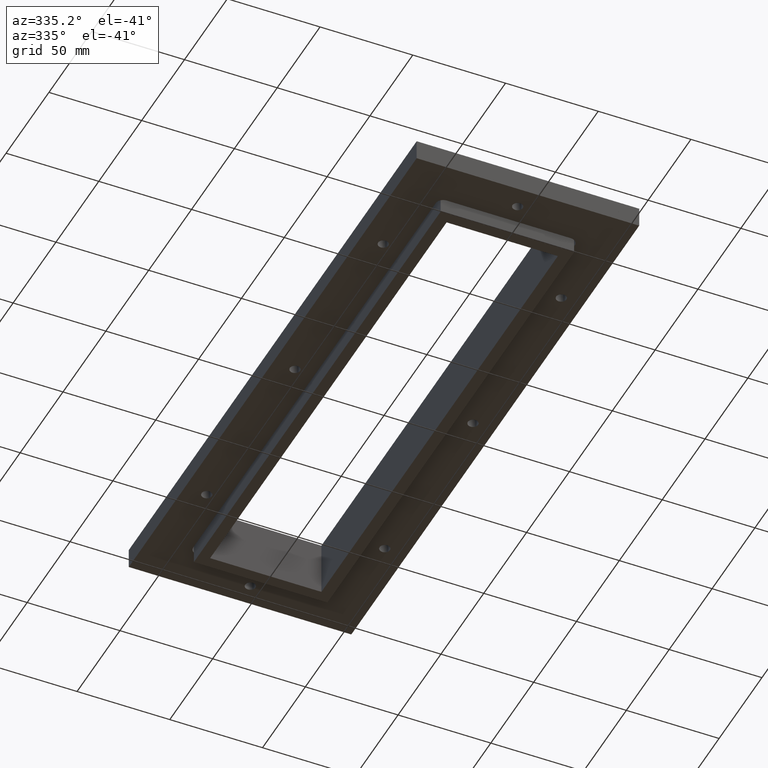
[diagram: clean part render]
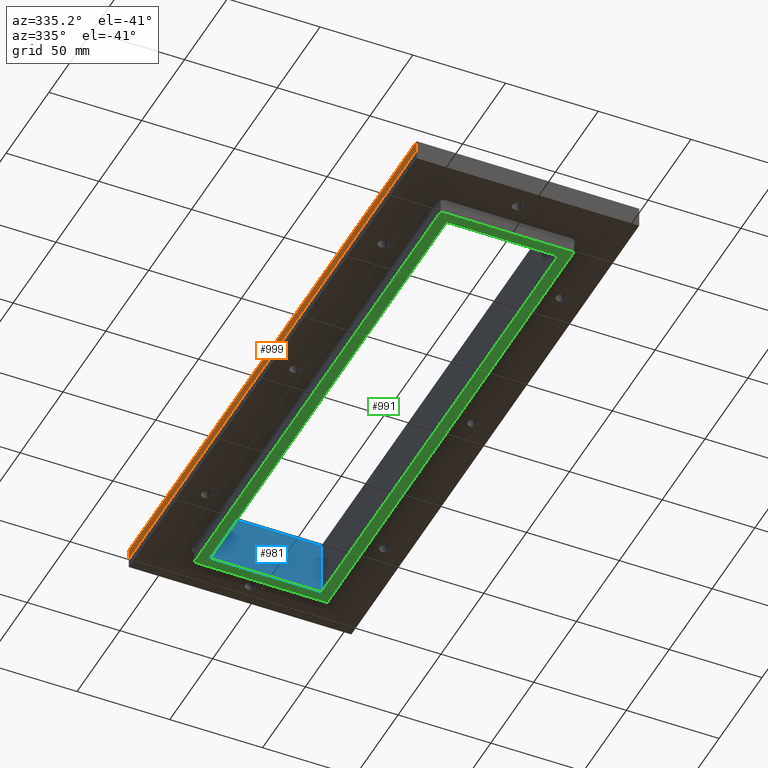
[diagram: same view with three faces highlighted in distinct colors, each labeled with its STEP entity id]
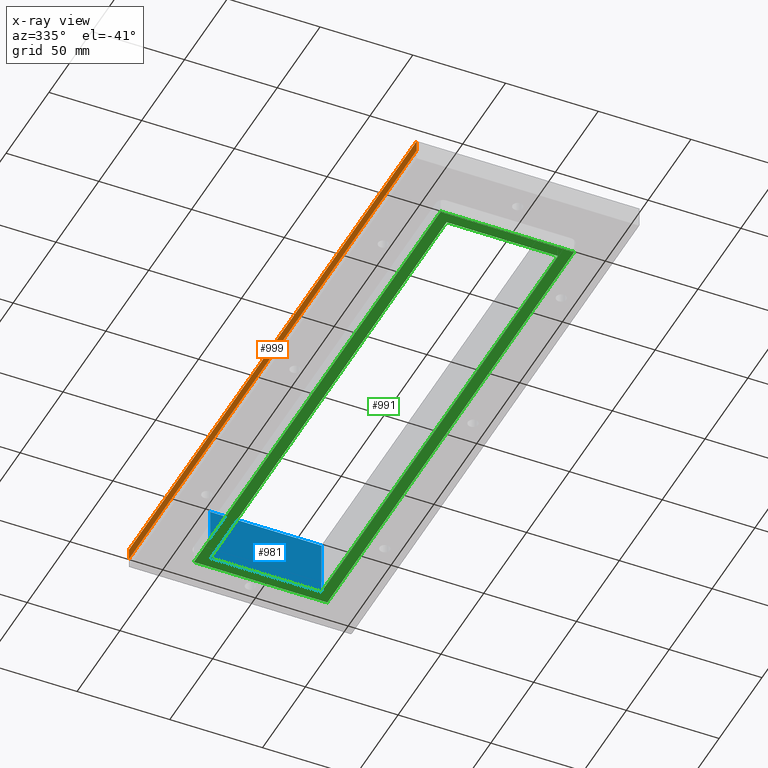
[diagram: x-ray of the same camera — body ghosted, the three highlighted faces saturated]
A machine part, auxiliary view with three faces highlighted in distinct colors.
The next image is the same camera in x-ray (body ghosted, the three faces saturated) — at least one of them is partly hidden behind the body in this view.
Their STEP definitions:

[orange] entity #999 — the highlighted planar face has unit normal (-1, 0, -0).
#95=PLANE('',#1086);
#133=FACE_OUTER_BOUND('',#203,.T.);
#203=EDGE_LOOP('',(#825,#826,#827,#828));
#263=LINE('',#1482,#355);
#292=LINE('',#1539,#384);
#295=LINE('',#1544,#387);
#297=LINE('',#1547,#389);
#355=VECTOR('',#1208,10.);
#384=VECTOR('',#1257,10.);
#387=VECTOR('',#1262,10.);
#389=VECTOR('',#1266,10.);
#495=VERTEX_POINT('',#1479);
#496=VERTEX_POINT('',#1481);
#514=VERTEX_POINT('',#1538);
#515=VERTEX_POINT('',#1543);
#591=EDGE_CURVE('',#496,#495,#263,.T.);
#620=EDGE_CURVE('',#514,#495,#292,.T.);
#623=EDGE_CURVE('',#515,#514,#295,.T.);
#625=EDGE_CURVE('',#515,#496,#297,.T.);
#825=ORIENTED_EDGE('',*,*,#591,.T.);
#826=ORIENTED_EDGE('',*,*,#620,.F.);
#827=ORIENTED_EDGE('',*,*,#623,.F.);
#828=ORIENTED_EDGE('',*,*,#625,.T.);
#999=ADVANCED_FACE('',(#133),#95,.T.);
#1086=AXIS2_PLACEMENT_3D('',#1555,#1276,#1277);
#1208=DIRECTION('',(2.96059473233375E-15,-2.96059473233375E-15,-1.));
#1257=DIRECTION('',(2.25262642677568E-16,1.,0.));
#1262=DIRECTION('',(2.96059473233375E-15,2.96059473233375E-15,-1.));
#1266=DIRECTION('',(2.25262642677568E-16,1.,0.));
#1276=DIRECTION('center_axis',(-1.,2.25262642677568E-16,-2.96059473233375E-15));
#1277=DIRECTION('ref_axis',(2.96059473233375E-15,0.,-1.));
#1479=CARTESIAN_POINT('',(-59.9999999999999,168.,-3.));
#1481=CARTESIAN_POINT('',(-60.,168.,3.));
#1482=CARTESIAN_POINT('',(-60.,168.,1.49999999999987));
#1538=CARTESIAN_POINT('',(-60.,-168.,-3.));
#1539=CARTESIAN_POINT('',(-59.9999999999999,138.,-3.));
#1543=CARTESIAN_POINT('',(-60.,-168.,3.));
#1544=CARTESIAN_POINT('',(-60.,-168.,1.49999999999946));
#1547=CARTESIAN_POINT('',(-60.,138.,3.));
#1555=CARTESIAN_POINT('Origin',(-60.,138.,3.));

[blue] entity #981 — the highlighted planar face has unit normal (-0, -1, -0).
#77=PLANE('',#1068);
#115=FACE_OUTER_BOUND('',#165,.T.);
#165=EDGE_LOOP('',(#721,#722,#723,#724));
#253=LINE('',#1460,#345);
#254=LINE('',#1462,#346);
#255=LINE('',#1464,#347);
#256=LINE('',#1465,#348);
#345=VECTOR('',#1194,10.);
#346=VECTOR('',#1195,10.);
#347=VECTOR('',#1196,10.);
#348=VECTOR('',#1197,10.);
#485=VERTEX_POINT('',#1458);
#486=VERTEX_POINT('',#1459);
#487=VERTEX_POINT('',#1461);
#488=VERTEX_POINT('',#1463);
#581=EDGE_CURVE('',#485,#486,#253,.T.);
#582=EDGE_CURVE('',#486,#487,#254,.T.);
#583=EDGE_CURVE('',#488,#487,#255,.T.);
#584=EDGE_CURVE('',#485,#488,#256,.T.);
#721=ORIENTED_EDGE('',*,*,#581,.T.);
#722=ORIENTED_EDGE('',*,*,#582,.T.);
#723=ORIENTED_EDGE('',*,*,#583,.F.);
#724=ORIENTED_EDGE('',*,*,#584,.F.);
#981=ADVANCED_FACE('',(#115),#77,.T.);
#1068=AXIS2_PLACEMENT_3D('',#1457,#1192,#1193);
#1192=DIRECTION('center_axis',(-2.96059473233375E-16,-1.,-1.48029736616688E-16));
#1193=DIRECTION('ref_axis',(-1.48029736616688E-16,-1.48029736616687E-16,
1.));
#1194=DIRECTION('',(-1.48029736616688E-16,-1.48029736616687E-16,1.));
#1195=DIRECTION('',(-1.,2.90912898920506E-16,0.));
#1196=DIRECTION('',(1.48029736616688E-16,-1.48029736616688E-16,1.));
#1197=DIRECTION('',(-1.,2.90912898920506E-16,0.));
#1457=CARTESIAN_POINT('Origin',(30.,138.,-15.));
#1458=CARTESIAN_POINT('',(30.,138.,-15.));
#1459=CARTESIAN_POINT('',(30.,138.,15.));
#1460=CARTESIAN_POINT('',(30.,138.,-7.49999999999998));
#1461=CARTESIAN_POINT('',(-29.9999999999999,138.,15.));
#1462=CARTESIAN_POINT('',(30.,138.,15.));
#1463=CARTESIAN_POINT('',(-30.,138.,-15.));
#1464=CARTESIAN_POINT('',(-30.,138.,-7.5));
#1465=CARTESIAN_POINT('',(30.,138.,-15.));

[green] entity #991 — the highlighted planar face has unit normal (0, 0, -1).
#40=FACE_BOUND('',#177,.T.);
#87=PLANE('',#1078);
#125=FACE_OUTER_BOUND('',#176,.T.);
#176=EDGE_LOOP('',(#765,#766,#767,#768));
#177=EDGE_LOOP('',(#769,#770,#771,#772));
#256=LINE('',#1465,#348);
#258=LINE('',#1471,#350);
#271=LINE('',#1498,#363);
#273=LINE('',#1503,#365);
#286=LINE('',#1527,#378);
#287=LINE('',#1530,#379);
#288=LINE('',#1531,#380);
#289=LINE('',#1532,#381);
#348=VECTOR('',#1197,10.);
#350=VECTOR('',#1201,10.);
#363=VECTOR('',#1220,10.);
#365=VECTOR('',#1224,10.);
#378=VECTOR('',#1245,10.);
#379=VECTOR('',#1248,10.);
#380=VECTOR('',#1249,10.);
#381=VECTOR('',#1250,10.);
#485=VERTEX_POINT('',#1458);
#488=VERTEX_POINT('',#1463);
#490=VERTEX_POINT('',#1468);
#491=VERTEX_POINT('',#1470);
#501=VERTEX_POINT('',#1494);
#504=VERTEX_POINT('',#1501);
#511=VERTEX_POINT('',#1525);
#512=VERTEX_POINT('',#1529);
#584=EDGE_CURVE('',#485,#488,#256,.T.);
#586=EDGE_CURVE('',#490,#491,#258,.T.);
#599=EDGE_CURVE('',#501,#485,#271,.T.);
#601=EDGE_CURVE('',#504,#490,#273,.T.);
#614=EDGE_CURVE('',#511,#501,#286,.T.);
#615=EDGE_CURVE('',#512,#491,#287,.T.);
#616=EDGE_CURVE('',#512,#504,#288,.T.);
#617=EDGE_CURVE('',#511,#488,#289,.T.);
#765=ORIENTED_EDGE('',*,*,#615,.T.);
#766=ORIENTED_EDGE('',*,*,#586,.F.);
#767=ORIENTED_EDGE('',*,*,#601,.F.);
#768=ORIENTED_EDGE('',*,*,#616,.F.);
#769=ORIENTED_EDGE('',*,*,#614,.T.);
#770=ORIENTED_EDGE('',*,*,#599,.T.);
#771=ORIENTED_EDGE('',*,*,#584,.T.);
#772=ORIENTED_EDGE('',*,*,#617,.F.);
#991=ADVANCED_FACE('',(#125,#40),#87,.T.);
#1078=AXIS2_PLACEMENT_3D('',#1528,#1246,#1247);
#1197=DIRECTION('',(-1.,2.90912898920506E-16,0.));
#1201=DIRECTION('',(-1.,2.90912898920506E-16,0.));
#1220=DIRECTION('',(6.46786084340301E-17,1.,0.));
#1224=DIRECTION('',(6.46786084340301E-17,1.,0.));
#1245=DIRECTION('',(1.,0.,0.));
#1246=DIRECTION('center_axis',(0.,3.70074341541719E-16,-1.));
#1247=DIRECTION('ref_axis',(0.707106781186548,0.707106781186547,2.61682076447296E-16));
#1248=DIRECTION('',(2.25262642677568E-16,1.,0.));
#1249=DIRECTION('',(1.,0.,0.));
#1250=DIRECTION('',(2.25262642677568E-16,1.,0.));
#1458=CARTESIAN_POINT('',(30.,138.,-15.));
#1463=CARTESIAN_POINT('',(-30.,138.,-15.));
#1465=CARTESIAN_POINT('',(30.,138.,-15.));
#1468=CARTESIAN_POINT('',(36.,144.,-15.));
#1470=CARTESIAN_POINT('',(-36.,144.,-15.));
#1471=CARTESIAN_POINT('',(36.,144.,-15.));
#1494=CARTESIAN_POINT('',(30.,-138.,-15.));
#1498=CARTESIAN_POINT('',(30.,-138.,-15.));
#1501=CARTESIAN_POINT('',(35.9999999999999,-144.,-15.));
#1503=CARTESIAN_POINT('',(35.9999999999999,-144.,-15.));
#1525=CARTESIAN_POINT('',(-30.,-138.,-15.));
#1527=CARTESIAN_POINT('',(-30.,-138.,-15.));
#1528=CARTESIAN_POINT('Origin',(-36.,-144.,-15.));
#1529=CARTESIAN_POINT('',(-36.,-144.,-15.));
#1530=CARTESIAN_POINT('',(-36.,138.,-15.));
#1531=CARTESIAN_POINT('',(-36.,-144.,-15.));
#1532=CARTESIAN_POINT('',(-30.,138.,-15.));